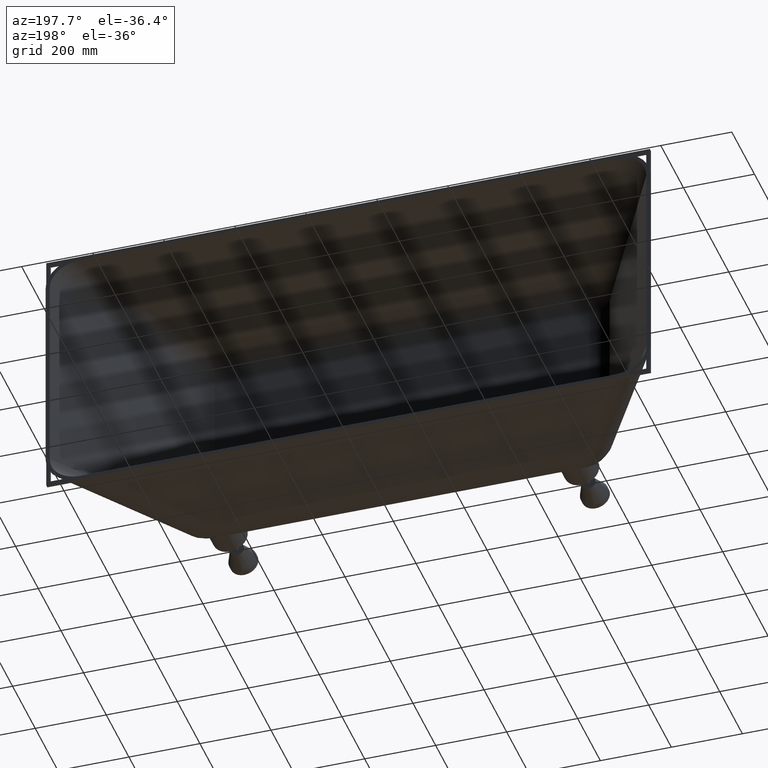
[diagram: clean part render]
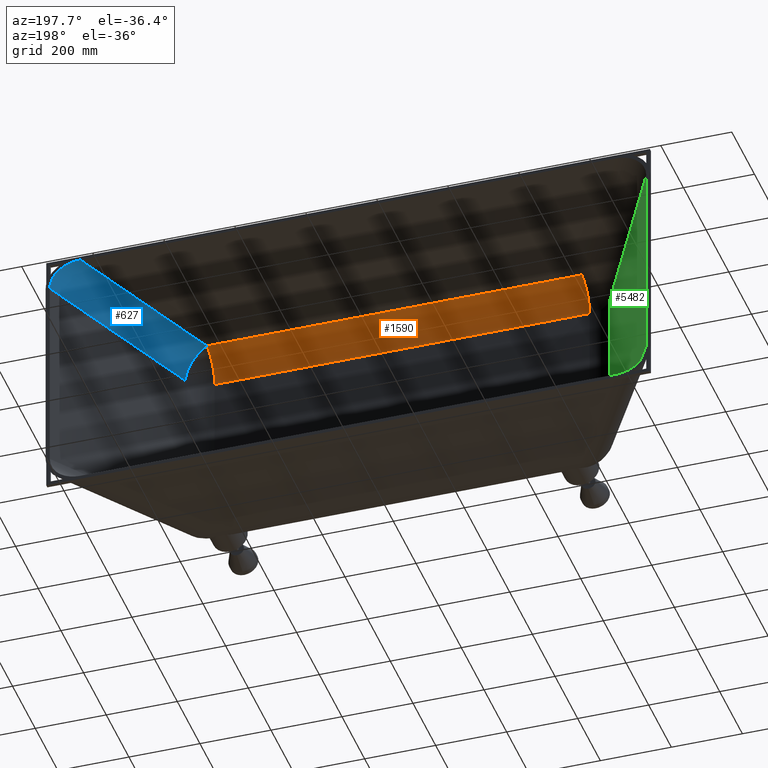
[diagram: same view with three faces highlighted in distinct colors, each labeled with its STEP entity id]
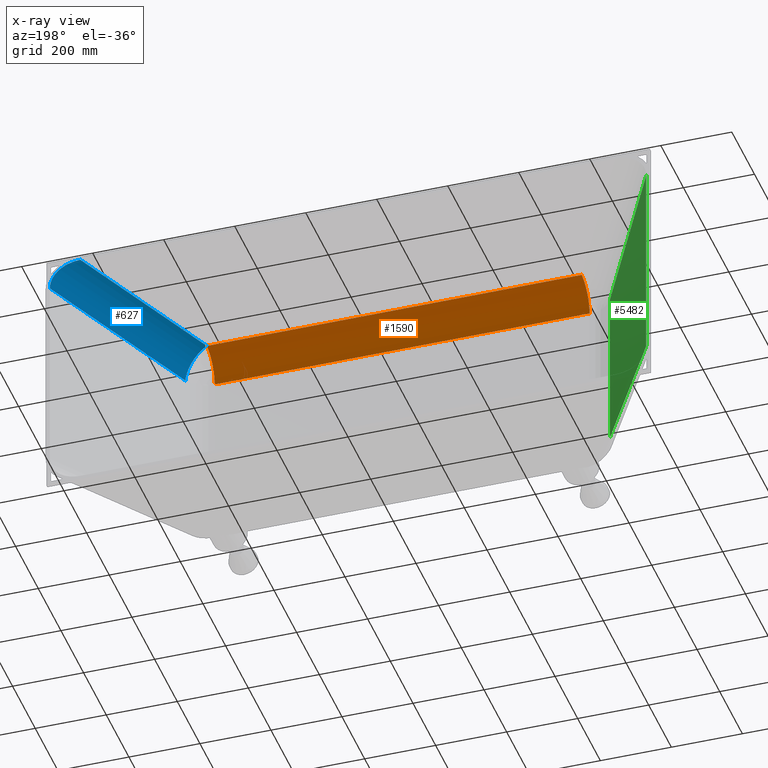
[diagram: x-ray of the same camera — body ghosted, the three highlighted faces saturated]
A machine part, auxiliary view with three faces highlighted in distinct colors.
The next image is the same camera in x-ray (body ghosted, the three faces saturated) — at least one of them is partly hidden behind the body in this view.
Their STEP definitions:

[orange] entity #1590 — the highlighted cylindrical surface (edge-blend (fillet) strip) has radius 80 mm, axis along (-1, 0, 0).
#119 = DIRECTION ( 'NONE',  ( 0.0000000000000000000, 0.0000000000000000000, 1.000000000000000000 ) ) ;
#142 = CARTESIAN_POINT ( 'NONE',  ( 839.9999999999998900, -397.9999999999999400, 229.4140630938800900 ) ) ;
#152 = DIRECTION ( 'NONE',  ( -1.000000000000000000, 0.0000000000000000000, 0.0000000000000000000 ) ) ;
#577 = CARTESIAN_POINT ( 'NONE',  ( 575.0000000000001100, -407.9636539807462400, 308.7911731404921100 ) ) ;
#887 = AXIS2_PLACEMENT_3D ( 'NONE', #142, #152, #119 ) ;
#1554 = CARTESIAN_POINT ( 'NONE',  ( 527.8798710438532000, -478.0000000000000000, 229.4140630938800900 ) ) ;
#1590 = ADVANCED_FACE ( 'NONE', ( #9046 ), #6282, .F. ) ;
#2019 = DIRECTION ( 'NONE',  ( 1.000000000000000000, 0.0000000000000000000, -0.0000000000000000000 ) ) ;
#2042 = EDGE_CURVE ( 'NONE', #5653, #6958, #8840, .T. ) ;
#2198 = CARTESIAN_POINT ( 'NONE',  ( -527.8798710438532000, -478.0000000000000000, 229.4140630938800900 ) ) ;
#2972 = CARTESIAN_POINT ( 'NONE',  ( -527.8798710438534300, -407.9636539807462400, 308.7911731404921100 ) ) ;
#3195 = DIRECTION ( 'NONE',  ( -2.775557561562891700E-015, 0.0000000000000000000, 1.000000000000000000 ) ) ;
#3229 = DIRECTION ( 'NONE',  ( -1.000000000000000000, -0.0000000000000000000, -2.797337983136975000E-015 ) ) ;
#3231 = CARTESIAN_POINT ( 'NONE',  ( -527.8798710438532000, -397.9999999999999400, 229.4140630938800900 ) ) ;
#3930 = EDGE_CURVE ( 'NONE', #5821, #5653, #10242, .T. ) ;
#4169 = LINE ( 'NONE', #5270, #8536 ) ;
#4380 = ORIENTED_EDGE ( 'NONE', *, *, #3930, .T. ) ;
#5148 = EDGE_CURVE ( 'NONE', #6958, #6383, #6428, .T. ) ;
#5174 = ORIENTED_EDGE ( 'NONE', *, *, #5148, .T. ) ;
#5270 = CARTESIAN_POINT ( 'NONE',  ( -574.9999999999995500, -478.0000000000000000, 229.4140630938800900 ) ) ;
#5445 = DIRECTION ( 'NONE',  ( -1.000000000000000000, 0.0000000000000000000, -0.0000000000000000000 ) ) ;
#5653 = VERTEX_POINT ( 'NONE', #2972 ) ;
#5821 = VERTEX_POINT ( 'NONE', #2198 ) ;
#6109 = ORIENTED_EDGE ( 'NONE', *, *, #2042, .T. ) ;
#6231 = AXIS2_PLACEMENT_3D ( 'NONE', #3231, #3229, #3195 ) ;
#6282 = CYLINDRICAL_SURFACE ( 'NONE', #887, 79.99999999999998600 ) ;
#6383 = VERTEX_POINT ( 'NONE', #1554 ) ;
#6428 = CIRCLE ( 'NONE', #8966, 80.00000000000001400 ) ;
#6942 = CARTESIAN_POINT ( 'NONE',  ( 527.8798710438532000, -407.9636539807462400, 308.7911731404921100 ) ) ;
#6958 = VERTEX_POINT ( 'NONE', #6942 ) ;
#7186 = EDGE_LOOP ( 'NONE', ( #5174, #10072, #4380, #6109 ) ) ;
#7517 = VECTOR ( 'NONE', #2019, 1000.000000000000000 ) ;
#8536 = VECTOR ( 'NONE', #5445, 1000.000000000000000 ) ;
#8840 = LINE ( 'NONE', #577, #7517 ) ;
#8966 = AXIS2_PLACEMENT_3D ( 'NONE', #10058, #10042, #10026 ) ;
#9046 = FACE_OUTER_BOUND ( 'NONE', #7186, .T. ) ;
#9990 = EDGE_CURVE ( 'NONE', #6383, #5821, #4169, .T. ) ;
#10026 = DIRECTION ( 'NONE',  ( -1.387778780781445500E-015, 1.000000000000000000, 0.0000000000000000000 ) ) ;
#10042 = DIRECTION ( 'NONE',  ( 1.000000000000000000, 1.387778780781444500E-015, 1.741981733198475200E-016 ) ) ;
#10058 = CARTESIAN_POINT ( 'NONE',  ( 527.8798710438532000, -397.9999999999998900, 229.4140630938800300 ) ) ;
#10072 = ORIENTED_EDGE ( 'NONE', *, *, #9990, .T. ) ;
#10242 = CIRCLE ( 'NONE', #6231, 79.99999999999998600 ) ;

[blue] entity #627 — the highlighted cylindrical surface (edge-blend (fillet) strip) has radius 80 mm, axis along (-0.482, -0.8694, -0.1091).
#17 = CARTESIAN_POINT ( 'NONE',  ( 736.1489349908500800, -22.32976389937918400, 276.5693228554643500 ) ) ;
#145 = ORIENTED_EDGE ( 'NONE', *, *, #1248, .T. ) ;
#379 = CARTESIAN_POINT ( 'NONE',  ( 754.0521896733463300, 0.0000000000000000000, 360.0000000000001700 ) ) ;
#449 = CARTESIAN_POINT ( 'NONE',  ( 805.0090721851380500, 0.0000000000000000000, 360.0000000000002300 ) ) ;
#627 = ADVANCED_FACE ( 'NONE', ( #9890 ), #1008, .F. ) ;
#851 = CIRCLE ( 'NONE', #4936, 79.99999999999997200 ) ;
#1008 = CYLINDRICAL_SURFACE ( 'NONE', #3825, 79.99999999999997200 ) ;
#1047 = DIRECTION ( 'NONE',  ( 0.8745884600236442100, -0.4848659872516017900, 0.0000000000000000000 ) ) ;
#1081 = DIRECTION ( 'NONE',  ( -0.4819703650835166500, -0.8693654132449850600, -0.1091253656792881100 ) ) ;
#1108 = CARTESIAN_POINT ( 'NONE',  ( 527.8798710438532000, -397.9999999999998900, 229.4140630938800600 ) ) ;
#1201 = VERTEX_POINT ( 'NONE', #6088 ) ;
#1247 = VECTOR ( 'NONE', #6252, 1000.000000000000200 ) ;
#1248 = EDGE_CURVE ( 'NONE', #6958, #1201, #3826, .T. ) ;
#1287 = DIRECTION ( 'NONE',  ( -0.4819703650835168700, -0.8693654132449850600, -0.1091253656792871300 ) ) ;
#1699 = CARTESIAN_POINT ( 'NONE',  ( 806.1160117927415700, -61.11904287950733300, 276.5693228554643500 ) ) ;
#2789 = DIRECTION ( 'NONE',  ( 0.8745884600236442100, -0.4848659872516020700, 0.0000000000000000000 ) ) ;
#3337 = VERTEX_POINT ( 'NONE', #3399 ) ;
#3399 = CARTESIAN_POINT ( 'NONE',  ( 597.8469478457448100, -436.7892789801280200, 229.4140630938800600 ) ) ;
#3598 = ORIENTED_EDGE ( 'NONE', *, *, #4828, .T. ) ;
#3825 = AXIS2_PLACEMENT_3D ( 'NONE', #17, #1287, #2789 ) ;
#3826 = LINE ( 'NONE', #6227, #1247 ) ;
#3906 = LINE ( 'NONE', #1699, #8287 ) ;
#4641 =( BOUNDED_CURVE ( )  B_SPLINE_CURVE ( 3, ( #379, #449, #10469, #8687 ),
 .UNSPECIFIED., .F., .F. ) 
 B_SPLINE_CURVE_WITH_KNOTS ( ( 4, 4 ),
 ( 1.825573858763107400, 3.335945460790859400 ),
 .UNSPECIFIED. ) 
 CURVE ( )  GEOMETRIC_REPRESENTATION_ITEM ( )  RATIONAL_B_SPLINE_CURVE ( ( 1.000000000000000000, 0.8187628021888563300, 0.8187628021888563300, 1.000000000000000000 ) ) 
 REPRESENTATION_ITEM ( '' )  );
#4828 = EDGE_CURVE ( 'NONE', #7683, #3337, #3906, .T. ) ;
#4936 = AXIS2_PLACEMENT_3D ( 'NONE', #1108, #1081, #1047 ) ;
#5809 = DIRECTION ( 'NONE',  ( -0.4819703650835167600, -0.8693654132449849500, -0.1091253656792871000 ) ) ;
#6088 = CARTESIAN_POINT ( 'NONE',  ( 754.0521896733463300, 0.0000000000000000000, 360.0000000000001700 ) ) ;
#6114 = ORIENTED_EDGE ( 'NONE', *, *, #10759, .T. ) ;
#6227 = CARTESIAN_POINT ( 'NONE',  ( 774.0174734729992000, 36.01285153295862800, 364.5204416150159000 ) ) ;
#6252 = DIRECTION ( 'NONE',  ( 0.4819703650835167100, 0.8693654132449849500, 0.1091253656792871000 ) ) ;
#6942 = CARTESIAN_POINT ( 'NONE',  ( 527.8798710438532000, -407.9636539807462400, 308.7911731404921100 ) ) ;
#6958 = VERTEX_POINT ( 'NONE', #6942 ) ;
#7373 = EDGE_CURVE ( 'NONE', #1201, #7683, #4641, .T. ) ;
#7683 = VERTEX_POINT ( 'NONE', #9227 ) ;
#8225 = ORIENTED_EDGE ( 'NONE', *, *, #7373, .T. ) ;
#8287 = VECTOR ( 'NONE', #5809, 1000.000000000000100 ) ;
#8466 = EDGE_LOOP ( 'NONE', ( #8225, #3598, #6114, #145 ) ) ;
#8687 = CARTESIAN_POINT ( 'NONE',  ( 839.9999999999998900, 0.0000000000000000000, 284.2411692420134300 ) ) ;
#9227 = CARTESIAN_POINT ( 'NONE',  ( 839.9999999999998900, 0.0000000000000000000, 284.2411692420134300 ) ) ;
#9890 = FACE_OUTER_BOUND ( 'NONE', #8466, .T. ) ;
#10469 = CARTESIAN_POINT ( 'NONE',  ( 840.0000000000002300, 0.0000000000000000000, 329.1571923901710800 ) ) ;
#10759 = EDGE_CURVE ( 'NONE', #3337, #6958, #851, .T. ) ;

[green] entity #5482 — the highlighted planar face has unit normal (-0.8746, -0.4849, -0).
#76 = CARTESIAN_POINT ( 'NONE',  ( -597.8469478457449200, -436.7892789801280700, -229.4140630938799500 ) ) ;
#183 = EDGE_CURVE ( 'NONE', #5191, #1210, #8578, .T. ) ;
#398 = ORIENTED_EDGE ( 'NONE', *, *, #183, .F. ) ;
#512 = DIRECTION ( 'NONE',  ( -0.0000000000000000000, -0.0000000000000000000, 1.000000000000000000 ) ) ;
#890 = CARTESIAN_POINT ( 'NONE',  ( -840.0000000000001100, 0.0000000000000000000, 284.2411692420134800 ) ) ;
#907 = VECTOR ( 'NONE', #1024, 1000.000000000000100 ) ;
#1024 = DIRECTION ( 'NONE',  ( -0.4819703650835168700, 0.8693654132449848400, 0.1091253656792871000 ) ) ;
#1103 = CARTESIAN_POINT ( 'NONE',  ( -843.9845502748909200, 7.187226533576782600, 285.1433315684038800 ) ) ;
#1210 = VERTEX_POINT ( 'NONE', #76 ) ;
#1236 = CARTESIAN_POINT ( 'NONE',  ( -840.0000000000001100, 0.0000000000000000000, 360.0000000000001700 ) ) ;
#2439 = EDGE_LOOP ( 'NONE', ( #6850, #398, #7103, #3115 ) ) ;
#2481 = AXIS2_PLACEMENT_3D ( 'NONE', #7397, #4124, #4096 ) ;
#2514 = DIRECTION ( 'NONE',  ( 0.0000000000000000000, 0.0000000000000000000, 1.000000000000000000 ) ) ;
#2536 = CARTESIAN_POINT ( 'NONE',  ( -597.8469478457449200, -436.7892789801281300, 300.0000000000000000 ) ) ;
#3115 = ORIENTED_EDGE ( 'NONE', *, *, #4102, .F. ) ;
#3368 = LINE ( 'NONE', #1103, #907 ) ;
#3782 = VERTEX_POINT ( 'NONE', #4165 ) ;
#4015 = EDGE_CURVE ( 'NONE', #1210, #3782, #6745, .T. ) ;
#4096 = DIRECTION ( 'NONE',  ( 0.0000000000000000000, 0.0000000000000000000, -1.000000000000000000 ) ) ;
#4102 = EDGE_CURVE ( 'NONE', #3782, #4121, #3368, .T. ) ;
#4121 = VERTEX_POINT ( 'NONE', #890 ) ;
#4124 = DIRECTION ( 'NONE',  ( -0.8745884600236441000, -0.4848659872516020700, -0.0000000000000000000 ) ) ;
#4148 = PLANE ( 'NONE',  #2481 ) ;
#4165 = CARTESIAN_POINT ( 'NONE',  ( -597.8469478457449200, -436.7892789801281300, 229.4140630938800900 ) ) ;
#4200 = VECTOR ( 'NONE', #8097, 1000.000000000000100 ) ;
#4378 = VECTOR ( 'NONE', #512, 1000.000000000000000 ) ;
#4538 = VECTOR ( 'NONE', #2514, 1000.000000000000000 ) ;
#5191 = VERTEX_POINT ( 'NONE', #7752 ) ;
#5482 = ADVANCED_FACE ( 'NONE', ( #8201 ), #4148, .F. ) ;
#5999 = EDGE_CURVE ( 'NONE', #5191, #4121, #7716, .T. ) ;
#6745 = LINE ( 'NONE', #2536, #4538 ) ;
#6850 = ORIENTED_EDGE ( 'NONE', *, *, #4015, .F. ) ;
#7103 = ORIENTED_EDGE ( 'NONE', *, *, #5999, .T. ) ;
#7397 = CARTESIAN_POINT ( 'NONE',  ( -840.0000000000001100, 0.0000000000000000000, 360.0000000000001700 ) ) ;
#7716 = LINE ( 'NONE', #1236, #4378 ) ;
#7752 = CARTESIAN_POINT ( 'NONE',  ( -840.0000000000001100, 0.0000000000000000000, -284.2411692420129700 ) ) ;
#8052 = CARTESIAN_POINT ( 'NONE',  ( -806.1160117927420300, -61.11904287950697800, -276.5693228554639500 ) ) ;
#8097 = DIRECTION ( 'NONE',  ( 0.4819703650835169300, -0.8693654132449849500, 0.1091253656792864800 ) ) ;
#8201 = FACE_OUTER_BOUND ( 'NONE', #2439, .T. ) ;
#8578 = LINE ( 'NONE', #8052, #4200 ) ;